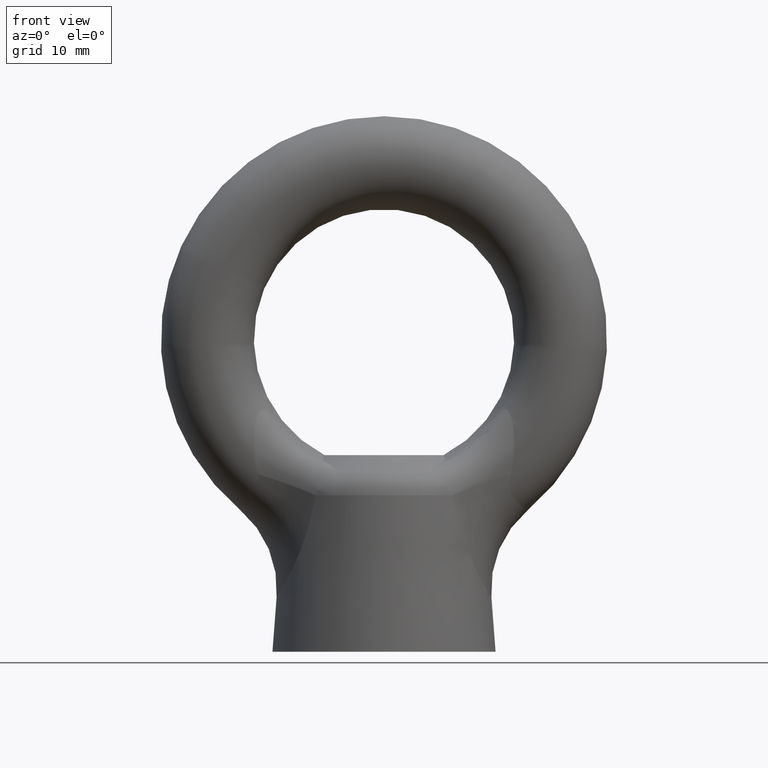
[diagram: clean part render]
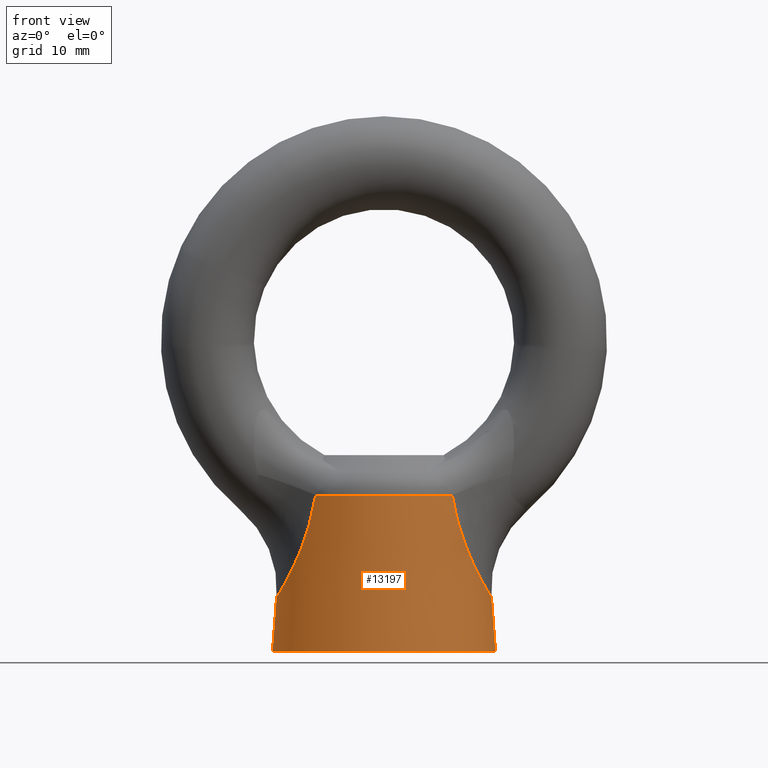
[diagram: same view with one face highlighted and labeled with its STEP entity id]
A machine part, front view. The second image highlights one B-rep face of the part: STEP entity #13197.
In plain terms, the highlighted conical surface has half-angle 4.351 deg.
Its self-contained STEP definition (entity closure, byte-faithful):
#4083 = CIRCLE ( 'NONE', #4089, 13.39953980184924000 ) ;
#4084 = DIRECTION ( 'NONE',  ( 1.000000000000000000, 0.0000000000000000000, 0.0000000000000000000 ) ) ;
#4085 = DIRECTION ( 'NONE',  ( 0.0000000000000000000, 0.0000000000000000000, -1.000000000000000000 ) ) ;
#4086 = CARTESIAN_POINT ( 'NONE',  ( 0.0000000000000000000, 0.0000000000000000000, -20.96469496878929900 ) ) ;
#4088 = CARTESIAN_POINT ( 'NONE',  ( -9.180284082713130900, -9.760637840941839700, -20.96469496878929900 ) ) ;
#4089 = AXIS2_PLACEMENT_3D ( 'NONE', #4086, #4085, #4084 ) ;
#12523 = CARTESIAN_POINT ( 'NONE',  ( 9.180284082713130900, -9.760637840941839700, -20.96469496878929900 ) ) ;
#13045 = VERTEX_POINT ( 'NONE', #13320 ) ;
#13047 = EDGE_CURVE ( 'NONE', #13045, #13201, #13319, .T. ) ;
#13151 = EDGE_CURVE ( 'NONE', #13152, #13204, #13375, .T. ) ;
#13152 = VERTEX_POINT ( 'NONE', #13371 ) ;
#13164 = EDGE_CURVE ( 'NONE', #13235, #13152, #13659, .T. ) ;
#13165 = ORIENTED_EDGE ( 'NONE', *, *, #13151, .T. ) ;
#13166 = ORIENTED_EDGE ( 'NONE', *, *, #13167, .F. ) ;
#13167 = EDGE_CURVE ( 'NONE', #13201, #13204, #13660, .T. ) ;
#13197 = ADVANCED_FACE ( 'NONE', ( #16941 ), #16934, .T. ) ;
#13198 = ORIENTED_EDGE ( 'NONE', *, *, #13047, .F. ) ;
#13199 = ORIENTED_EDGE ( 'NONE', *, *, #13200, .T. ) ;
#13200 = EDGE_CURVE ( 'NONE', #13045, #13304, #16929, .T. ) ;
#13201 = VERTEX_POINT ( 'NONE', #16930 ) ;
#13204 = VERTEX_POINT ( 'NONE', #16924 ) ;
#13226 = EDGE_LOOP ( 'NONE', ( #13198, #13199, #13233, #13236, #13165, #13166 ) ) ;
#13233 = ORIENTED_EDGE ( 'NONE', *, *, #13234, .T. ) ;
#13234 = EDGE_CURVE ( 'NONE', #13304, #13235, #4083, .T. ) ;
#13235 = VERTEX_POINT ( 'NONE', #4088 ) ;
#13236 = ORIENTED_EDGE ( 'NONE', *, *, #13164, .T. ) ;
#13304 = VERTEX_POINT ( 'NONE', #12523 ) ;
#13317 = VECTOR ( 'NONE', #13347, 1000.000000000000100 ) ;
#13318 = CARTESIAN_POINT ( 'NONE',  ( 15.00000000000000000, 1.836909530733565900E-015, -42.00000000000000000 ) ) ;
#13319 = LINE ( 'NONE', #13318, #13317 ) ;
#13320 = CARTESIAN_POINT ( 'NONE',  ( 14.44212947466842300, 1.776239888956626400E-011, -34.66774851268994700 ) ) ;
#13347 = DIRECTION ( 'NONE',  ( 0.07586520857541637100, 9.290501645551477600E-018, -0.9971180823392024100 ) ) ;
#13371 = CARTESIAN_POINT ( 'NONE',  ( -14.44212947466842300, -1.781214476940803500E-011, -34.66774851268994700 ) ) ;
#13372 = DIRECTION ( 'NONE',  ( -0.07586520857541637100, 0.0000000000000000000, -0.9971180823392024100 ) ) ;
#13373 = VECTOR ( 'NONE', #13372, 1000.000000000000100 ) ;
#13374 = CARTESIAN_POINT ( 'NONE',  ( -15.00000000000000000, 0.0000000000000000000, -42.00000000000000000 ) ) ;
#13375 = LINE ( 'NONE', #13374, #13373 ) ;
#13620 = CARTESIAN_POINT ( 'NONE',  ( -9.180284082713130900, -9.760637840941839700, -20.96469496878929900 ) ) ;
#13623 = DIRECTION ( 'NONE',  ( -1.000000000000000000, 0.0000000000000000000, 0.0000000000000000000 ) ) ;
#13624 = DIRECTION ( 'NONE',  ( 0.0000000000000000000, 0.0000000000000000000, -1.000000000000000000 ) ) ;
#13625 = CARTESIAN_POINT ( 'NONE',  ( 0.0000000000000000000, 0.0000000000000000000, -42.00000000000000000 ) ) ;
#13627 = CARTESIAN_POINT ( 'NONE',  ( -12.92876468837281400, -5.981016671676838900, -32.04068819193776800 ) ) ;
#13628 = CARTESIAN_POINT ( 'NONE',  ( -12.49038418085320500, -6.733476923712654400, -31.19552751687681900 ) ) ;
#13629 = CARTESIAN_POINT ( 'NONE',  ( -12.18375463359328500, -7.172687532367672400, -30.57029440491712100 ) ) ;
#13630 = CARTESIAN_POINT ( 'NONE',  ( -11.59298164557836600, -7.918296577346717800, -29.26598723930404200 ) ) ;
#13631 = CARTESIAN_POINT ( 'NONE',  ( -11.30601740713636100, -8.229785761720787500, -28.58205961552910800 ) ) ;
#13632 = CARTESIAN_POINT ( 'NONE',  ( -10.76352535829999500, -8.756841414477941400, -27.15697943711907700 ) ) ;
#13633 = CARTESIAN_POINT ( 'NONE',  ( -10.50687735252761200, -8.972800392968149900, -26.41151956013909800 ) ) ;
#13634 = CARTESIAN_POINT ( 'NONE',  ( -10.04433736295403400, -9.319199480539003500, -24.89743153584450000 ) ) ;
#13635 = CARTESIAN_POINT ( 'NONE',  ( -9.837358048583105600, -9.450876147445358200, -24.12677703600594400 ) ) ;
#13636 = CARTESIAN_POINT ( 'NONE',  ( -9.472584852460201400, -9.650277951098972900, -22.56138647775120600 ) ) ;
#13637 = CARTESIAN_POINT ( 'NONE',  ( -9.314656186404173300, -9.717893195387077300, -21.76544189514494900 ) ) ;
#13640 = CARTESIAN_POINT ( 'NONE',  ( -14.28669166874691000, -2.016053298919600500, -34.41650237985503200 ) ) ;
#13641 = CARTESIAN_POINT ( 'NONE',  ( -14.13940883152153900, -2.778606008612394300, -34.17463493105353200 ) ) ;
#13642 = CARTESIAN_POINT ( 'NONE',  ( -14.05038256567616600, -3.145064014927150300, -34.02720609316610700 ) ) ;
#13643 = CARTESIAN_POINT ( 'NONE',  ( -13.84632360693384700, -3.851163720843117800, -33.68330436701455700 ) ) ;
#13644 = CARTESIAN_POINT ( 'NONE',  ( -13.73066688601297600, -4.192142933519100700, -33.48572896347079800 ) ) ;
#13645 = CARTESIAN_POINT ( 'NONE',  ( -13.48121855039551800, -4.838549137240391900, -33.05002333132990300 ) ) ;
#13646 = CARTESIAN_POINT ( 'NONE',  ( -13.34772401597814100, -5.143531294500272500, -32.81238328782366400 ) ) ;
#13647 = CARTESIAN_POINT ( 'NONE',  ( -13.07177092022509900, -5.714080450193738300, -32.30818766832523200 ) ) ;
#13659 = B_SPLINE_CURVE_WITH_KNOTS ( 'NONE', 3,
 ( #13620, #13637, #13636, #13635, #13634, #13633, #13632, #13631, #13630, #13629, #13628, #13627, #13647, #13646, #13645, #13644, #13643, #13642, #13641, #13640, #13677, #13676, #13675, #13674 ),
 .UNSPECIFIED., .F., .F.,
 ( 4, 2, 2, 2, 2, 2, 2, 2, 2, 2, 2, 4 ),
 ( 4.606009340377051900E-017, 0.002438668636033028100, 0.004877337272066010200, 0.007316005908098992300, 0.009754674544131975200, 0.01219334318016495600, 0.01341267749818143800, 0.01463201181619792200, 0.01585134613421440200, 0.01707068045223088600, 0.01829001477024736600, 0.01950934908826385000 ),
 .UNSPECIFIED. ) ;
#13660 = CIRCLE ( 'NONE', #13661, 15.00000000000000000 ) ;
#13661 = AXIS2_PLACEMENT_3D ( 'NONE', #13625, #13624, #13623 ) ;
#13674 = CARTESIAN_POINT ( 'NONE',  ( -14.44212947466842300, -1.781214476940803500E-011, -34.66774851268994700 ) ) ;
#13675 = CARTESIAN_POINT ( 'NONE',  ( -14.44212947466785500, -0.4044361484747424600, -34.66774851268904500 ) ) ;
#13676 = CARTESIAN_POINT ( 'NONE',  ( -14.42240434046879300, -0.8143176262513340800, -34.63612259388461500 ) ) ;
#13677 = CARTESIAN_POINT ( 'NONE',  ( -14.34479157466078200, -1.618730310850817300, -34.51068641804546600 ) ) ;
#16900 = CARTESIAN_POINT ( 'NONE',  ( 9.180284082713130900, -9.760637840941839700, -20.96469496878929900 ) ) ;
#16901 = CARTESIAN_POINT ( 'NONE',  ( 9.449157529654112200, -9.675107437882768800, -22.56695898268929700 ) ) ;
#16902 = CARTESIAN_POINT ( 'NONE',  ( 9.811258133694813900, -9.493843747931000700, -24.13481507131608000 ) ) ;
#16903 = CARTESIAN_POINT ( 'NONE',  ( 10.50876141172326000, -8.971344426346117700, -26.41751154318326300 ) ) ;
#16904 = CARTESIAN_POINT ( 'NONE',  ( 10.76333505901933800, -8.757079076136417200, -27.15658943714643000 ) ) ;
#16905 = CARTESIAN_POINT ( 'NONE',  ( 11.17145135194289700, -8.360496311159545600, -28.22851096206917300 ) ) ;
#16906 = CARTESIAN_POINT ( 'NONE',  ( 11.31185178321079800, -8.215705035040167900, -28.57974928085269900 ) ) ;
#16907 = CARTESIAN_POINT ( 'NONE',  ( 11.59989421399507100, -7.897336944906798300, -29.26936569879102400 ) ) ;
#16908 = CARTESIAN_POINT ( 'NONE',  ( 11.74795486384411100, -7.723166379145713000, -29.60858218750221100 ) ) ;
#16909 = CARTESIAN_POINT ( 'NONE',  ( 12.19338322725103300, -7.159576785608716200, -30.59062415893197700 ) ) ;
#16910 = CARTESIAN_POINT ( 'NONE',  ( 12.49395726582313400, -6.728098887474772000, -31.20270228469305700 ) ) ;
#16911 = CARTESIAN_POINT ( 'NONE',  ( 13.07901292293695400, -5.722357401620563200, -32.33006417586918200 ) ) ;
#16912 = CARTESIAN_POINT ( 'NONE',  ( 13.36579204452693900, -5.139966717383918700, -32.84865894272248000 ) ) ;
#16913 = CARTESIAN_POINT ( 'NONE',  ( 13.73412363389773300, -4.181992904458734700, -33.49163842974154200 ) ) ;
#16914 = CARTESIAN_POINT ( 'NONE',  ( 13.84742142685073100, -3.847568171841557700, -33.68516369359687700 ) ) ;
#16915 = CARTESIAN_POINT ( 'NONE',  ( 14.05035282577656600, -3.144962643407923000, -34.02714675956085700 ) ) ;
#16916 = CARTESIAN_POINT ( 'NONE',  ( 14.14049520684092800, -2.774180635638280500, -34.17643498045195800 ) ) ;
#16917 = CARTESIAN_POINT ( 'NONE',  ( 14.28839983252728100, -2.005987183954851100, -34.41929120912889300 ) ) ;
#16918 = CARTESIAN_POINT ( 'NONE',  ( 14.34609441748236800, -1.608122309744247600, -34.51279681995102800 ) ) ;
#16924 = CARTESIAN_POINT ( 'NONE',  ( -15.00000000000000000, 0.0000000000000000000, -42.00000000000000000 ) ) ;
#16926 = CARTESIAN_POINT ( 'NONE',  ( 14.42279363825856600, -0.8073231911410888600, -34.63674688877015500 ) ) ;
#16927 = CARTESIAN_POINT ( 'NONE',  ( 14.44212947466899500, -0.4047527916969973500, -34.66774851269087100 ) ) ;
#16928 = CARTESIAN_POINT ( 'NONE',  ( 14.44212947466842300, 1.776239888956626400E-011, -34.66774851268994700 ) ) ;
#16929 = B_SPLINE_CURVE_WITH_KNOTS ( 'NONE', 3,
 ( #16928, #16927, #16926, #16918, #16917, #16916, #16915, #16914, #16913, #16912, #16911, #16910, #16909, #16908, #16907, #16906, #16905, #16904, #16903, #16902, #16901, #16900 ),
 .UNSPECIFIED., .F., .F.,
 ( 4, 2, 2, 2, 2, 2, 2, 2, 2, 2, 4 ),
 ( 0.01950934908826385000, 0.02072963805386145900, 0.02194992701945906700, 0.02317021598505667600, 0.02439050495065428500, 0.02683108288184948800, 0.02927166081304469200, 0.03049194977864230100, 0.03171223874423990300, 0.03415281667543512000, 0.03903397253782554800 ),
 .UNSPECIFIED. ) ;
#16930 = CARTESIAN_POINT ( 'NONE',  ( 15.00000000000000000, 1.836909530733565900E-015, -42.00000000000000000 ) ) ;
#16931 = DIRECTION ( 'NONE',  ( -1.000000000000000000, 0.0000000000000000000, 0.0000000000000000000 ) ) ;
#16932 = DIRECTION ( 'NONE',  ( 0.0000000000000000000, 0.0000000000000000000, -1.000000000000000000 ) ) ;
#16933 = AXIS2_PLACEMENT_3D ( 'NONE', #16935, #16932, #16931 ) ;
#16934 = CONICAL_SURFACE ( 'NONE', #16933, 15.00000000000000000, 0.07593817178674543100 ) ;
#16935 = CARTESIAN_POINT ( 'NONE',  ( 0.0000000000000000000, 0.0000000000000000000, -42.00000000000000000 ) ) ;
#16941 = FACE_OUTER_BOUND ( 'NONE', #13226, .T. ) ;